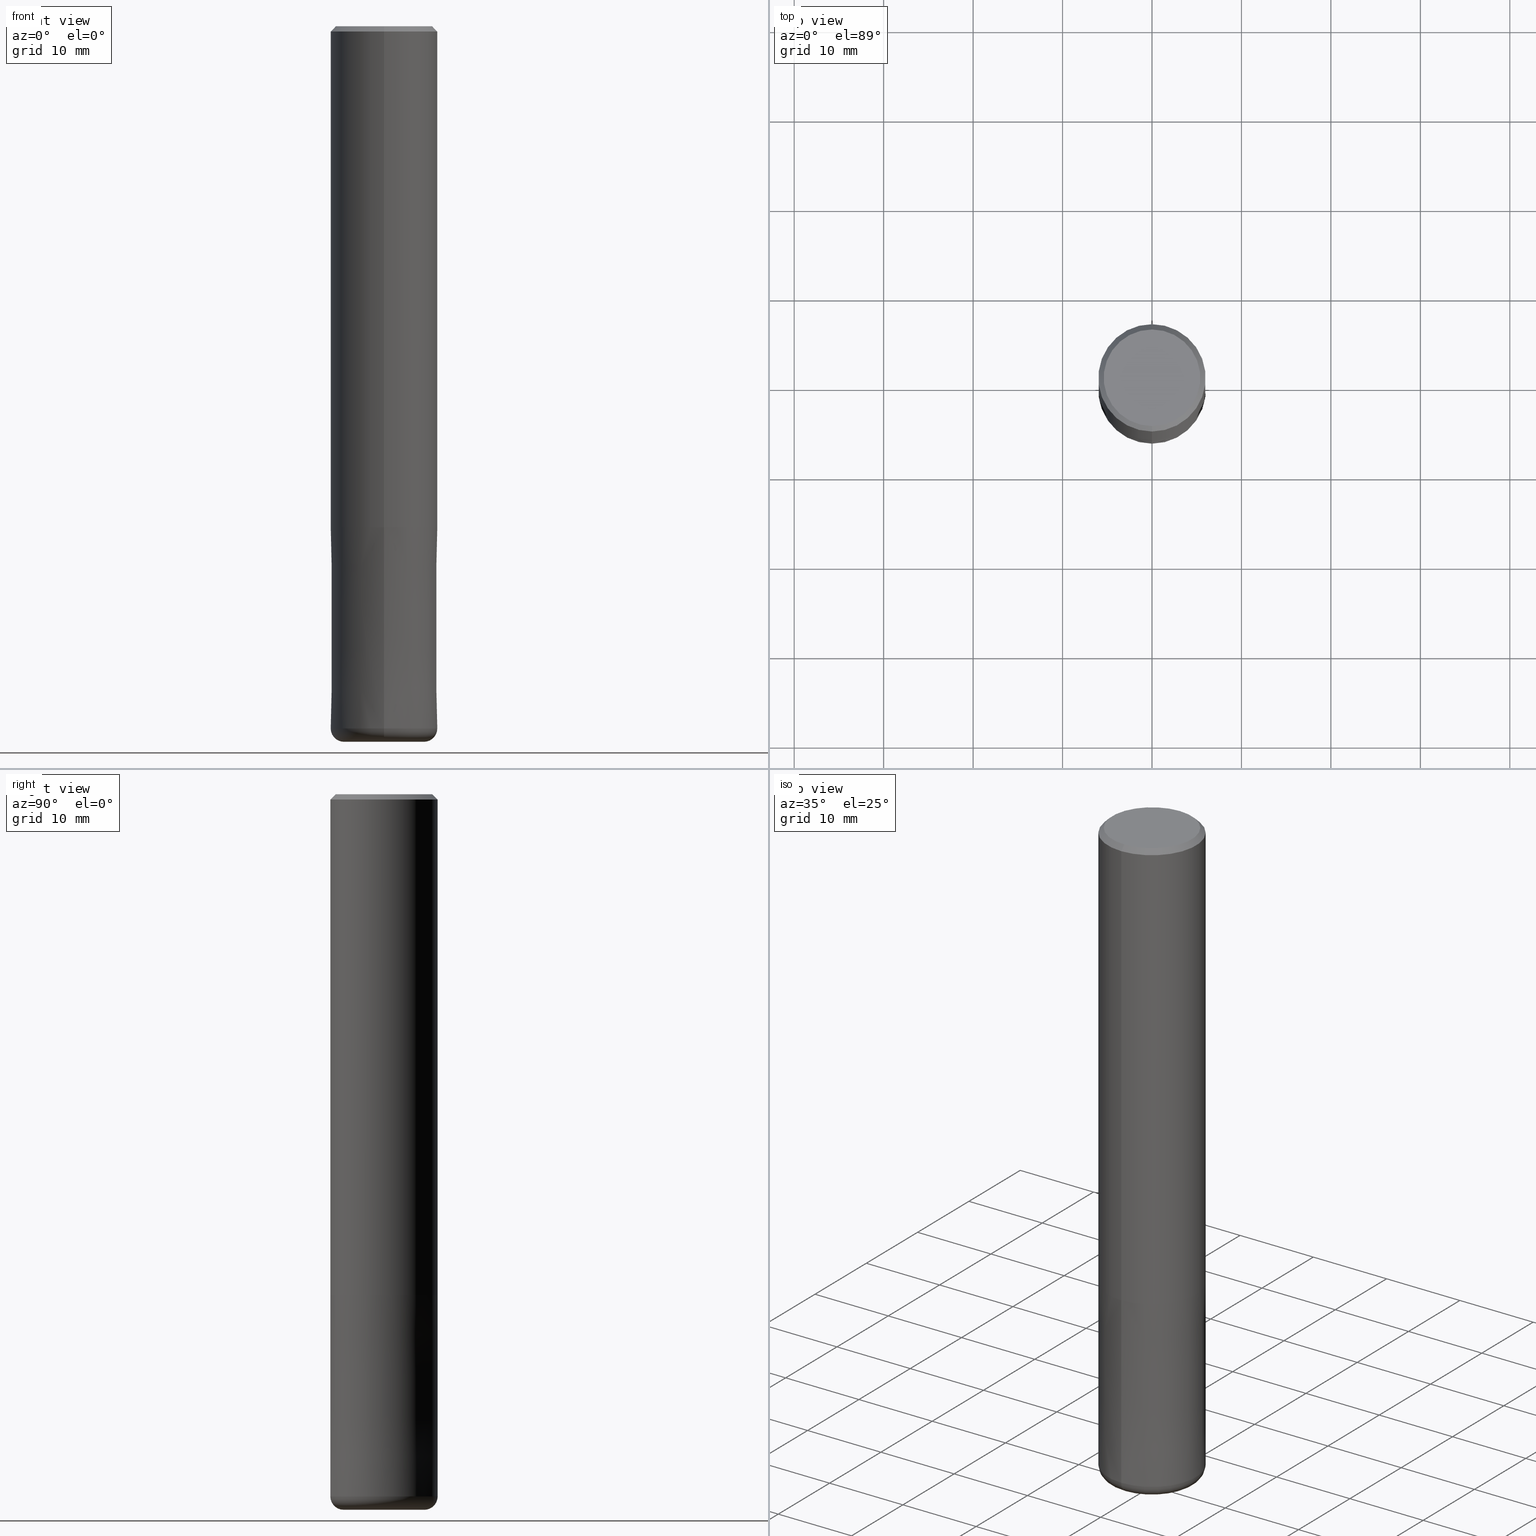
[diagram: canonical four-view strip — front | top / right | iso, engineering-drawing reading convention]
A machine part, canonical four-view strip (front | top / right | iso — engineering-drawing reading convention). The complete STEP part file that produces these views, byte-faithful:
ISO-10303-21;
HEADER;
FILE_DESCRIPTION(('no description'),'unknown implementation level');
FILE_NAME('CXRS5120-15-2400-Huellk.stp','  ',('CIMSOURCE GmbH'),('CADClick - KiM GmbH - www.kimweb.de'),'unknown preprocess','ACIS','unknown authorization');
FILE_SCHEMA(('automotive_design'));
ENDSEC;
DATA;
#1=MECHANICAL_DESIGN_GEOMETRIC_PRESENTATION_REPRESENTATION(' ',(#14,#15,#16,#17,#18,#19,#20,#21,#22,#23,#24,#25,#26,#27,#28,#29,#30,#31,#32,#33,#34,#35,#36,#37,#38,#39,#40,#41,#42,#43,#44,#45,#46,#47,#48,#49,#50,#51,#52,#53,#54,#55,#56,#57,#58,#59,#60,#61,#62,#63,#64,#65,#66,#67,#68,#69,#70,#71,#72,#73,#74,#75,#76,#77,#78,#79,#80,#81,#82,#83,#84),#10);
#2=PRODUCT_DEFINITION_CONTEXT('',#85,'design');
#3=APPLICATION_PROTOCOL_DEFINITION('INTERNATIONAL STANDARD','automotive_design',1994,#85);
#4=PRODUCT_CATEGORY_RELATIONSHIP('NONE','NONE',#86,#87);
#5=SHAPE_DEFINITION_REPRESENTATION(#88,#89);
#6=PRODUCT_DEFINITION_CONTEXT('',#90,'design');
#7=APPLICATION_PROTOCOL_DEFINITION('INTERNATIONAL STANDARD','automotive_design',1994,#90);
#8=PRODUCT_CATEGORY_RELATIONSHIP('NONE','NONE',#91,#92);
#9=SHAPE_DEFINITION_REPRESENTATION(#93,#94);
#10= (GEOMETRIC_REPRESENTATION_CONTEXT(3)GLOBAL_UNCERTAINTY_ASSIGNED_CONTEXT((#97))GLOBAL_UNIT_ASSIGNED_CONTEXT((#99,#100,#101))REPRESENTATION_CONTEXT('NONE','WORKSPACE'));
#14=STYLED_ITEM('',(#103),#104);
#15=STYLED_ITEM('',(#105),#106);
#16=STYLED_ITEM('',(#107),#108);
#17=STYLED_ITEM('',(#109),#110);
#18=STYLED_ITEM('',(#111),#112);
#19=STYLED_ITEM('',(#113),#114);
#20=STYLED_ITEM('',(#115),#116);
#21=STYLED_ITEM('',(#117),#118);
#22=STYLED_ITEM('',(#119),#120);
#23=STYLED_ITEM('',(#121),#122);
#24=STYLED_ITEM('',(#123),#124);
#25=STYLED_ITEM('',(#125),#126);
#26=STYLED_ITEM('',(#127),#128);
#27=STYLED_ITEM('',(#129),#130);
#28=STYLED_ITEM('',(#131),#132);
#29=STYLED_ITEM('',(#133),#134);
#30=STYLED_ITEM('',(#135),#136);
#31=STYLED_ITEM('',(#137),#138);
#32=STYLED_ITEM('',(#139),#140);
#33=STYLED_ITEM('',(#141),#142);
#34=STYLED_ITEM('',(#143),#144);
#35=STYLED_ITEM('',(#145),#146);
#36=STYLED_ITEM('',(#147),#148);
#37=STYLED_ITEM('',(#149),#150);
#38=STYLED_ITEM('',(#151),#152);
#39=STYLED_ITEM('',(#153),#154);
#40=STYLED_ITEM('',(#155),#156);
#41=STYLED_ITEM('',(#157),#158);
#42=STYLED_ITEM('',(#159),#160);
#43=STYLED_ITEM('',(#161),#162);
#44=STYLED_ITEM('',(#163),#164);
#45=STYLED_ITEM('',(#165),#166);
#46=STYLED_ITEM('',(#167),#168);
#47=STYLED_ITEM('',(#169),#170);
#48=STYLED_ITEM('',(#171),#172);
#49=STYLED_ITEM('',(#173),#174);
#50=STYLED_ITEM('',(#175),#176);
#51=STYLED_ITEM('',(#177),#178);
#52=STYLED_ITEM('',(#179),#180);
#53=STYLED_ITEM('',(#181),#182);
#54=STYLED_ITEM('',(#183),#184);
#55=STYLED_ITEM('',(#185),#186);
#56=STYLED_ITEM('',(#187),#188);
#57=STYLED_ITEM('',(#189),#190);
#58=STYLED_ITEM('',(#191),#192);
#59=STYLED_ITEM('',(#193),#194);
#60=STYLED_ITEM('',(#195),#196);
#61=STYLED_ITEM('',(#197),#198);
#62=STYLED_ITEM('',(#199),#200);
#63=STYLED_ITEM('',(#201),#202);
#64=STYLED_ITEM('',(#203),#204);
#65=STYLED_ITEM('',(#205),#206);
#66=STYLED_ITEM('',(#207),#208);
#67=STYLED_ITEM('',(#209),#210);
#68=STYLED_ITEM('',(#211),#212);
#69=STYLED_ITEM('',(#213),#214);
#70=STYLED_ITEM('',(#215),#216);
#71=STYLED_ITEM('',(#217),#218);
#72=STYLED_ITEM('',(#219),#220);
#73=STYLED_ITEM('',(#221),#222);
#74=STYLED_ITEM('',(#223),#224);
#75=STYLED_ITEM('',(#225),#226);
#76=STYLED_ITEM('',(#227),#228);
#77=STYLED_ITEM('',(#229),#230);
#78=STYLED_ITEM('',(#231),#232);
#79=STYLED_ITEM('',(#233),#234);
#80=STYLED_ITEM('',(#235),#236);
#81=STYLED_ITEM('',(#237),#238);
#82=STYLED_ITEM('',(#239),#240);
#83=STYLED_ITEM('',(#241),#242);
#84=STYLED_ITEM('',(#243),#244);
#85=APPLICATION_CONTEXT(' ');
#86=PRODUCT_CATEGORY('part','NONE');
#87=PRODUCT_RELATED_PRODUCT_CATEGORY('detail',' ',(#245));
#88=PRODUCT_DEFINITION_SHAPE('NONE','NONE',#246);
#89=ADVANCED_BREP_SHAPE_REPRESENTATION('1',(#214,#247),#10);
#90=APPLICATION_CONTEXT(' ');
#91=PRODUCT_CATEGORY('part','NONE');
#92=PRODUCT_RELATED_PRODUCT_CATEGORY('detail',' ',(#248));
#93=PRODUCT_DEFINITION_SHAPE('NONE','NONE',#249);
#94=ADVANCED_BREP_SHAPE_REPRESENTATION('2',(#134,#250),#10);
#97=UNCERTAINTY_MEASURE_WITH_UNIT(LENGTH_MEASURE(1.0E-006),#99,'','');
#99= (CONVERSION_BASED_UNIT('MILLIMETRE',#253)LENGTH_UNIT()NAMED_UNIT(#256));
#100= (NAMED_UNIT(#258)PLANE_ANGLE_UNIT()SI_UNIT($,.RADIAN.));
#101= (NAMED_UNIT(#258)SOLID_ANGLE_UNIT()SI_UNIT($,.STERADIAN.));
#103=PRESENTATION_STYLE_ASSIGNMENT((#264));
#104=EDGE_CURVE('',#184,#126,#265,.T.);
#105=PRESENTATION_STYLE_ASSIGNMENT((#266));
#106=EDGE_CURVE('',#126,#142,#267,.T.);
#107=PRESENTATION_STYLE_ASSIGNMENT((#268));
#108=EDGE_CURVE('',#142,#238,#269,.T.);
#109=PRESENTATION_STYLE_ASSIGNMENT((#270));
#110=EDGE_CURVE('',#244,#208,#271,.T.);
#111=PRESENTATION_STYLE_ASSIGNMENT((#272));
#112=EDGE_CURVE('',#132,#116,#273,.T.);
#113=PRESENTATION_STYLE_ASSIGNMENT((#274));
#114=ADVANCED_FACE('',(#275),#276,.T.);
#115=PRESENTATION_STYLE_ASSIGNMENT((#277));
#116=VERTEX_POINT('',#278);
#117=PRESENTATION_STYLE_ASSIGNMENT((#279));
#118=EDGE_CURVE('',#186,#192,#280,.T.);
#119=PRESENTATION_STYLE_ASSIGNMENT((#281));
#120=EDGE_CURVE('',#236,#140,#282,.T.);
#121=PRESENTATION_STYLE_ASSIGNMENT((#283));
#122=EDGE_CURVE('',#158,#192,#284,.T.);
#123=PRESENTATION_STYLE_ASSIGNMENT((#285));
#124=ADVANCED_FACE('',(#286),#287,.F.);
#125=PRESENTATION_STYLE_ASSIGNMENT((#288));
#126=VERTEX_POINT('',#289);
#127=PRESENTATION_STYLE_ASSIGNMENT((#290));
#128=EDGE_CURVE('',#188,#186,#291,.T.);
#129=PRESENTATION_STYLE_ASSIGNMENT((#292));
#130=EDGE_CURVE('',#126,#184,#293,.T.);
#131=PRESENTATION_STYLE_ASSIGNMENT((#294));
#132=VERTEX_POINT('',#295);
#133=PRESENTATION_STYLE_ASSIGNMENT((#296));
#134=MANIFOLD_SOLID_BREP('2',#297);
#135=PRESENTATION_STYLE_ASSIGNMENT((#298));
#136=EDGE_CURVE('',#182,#220,#299,.T.);
#137=PRESENTATION_STYLE_ASSIGNMENT((#300));
#138=VERTEX_POINT('',#301);
#139=PRESENTATION_STYLE_ASSIGNMENT((#302));
#140=VERTEX_POINT('',#303);
#141=PRESENTATION_STYLE_ASSIGNMENT((#304));
#142=VERTEX_POINT('',#305);
#143=PRESENTATION_STYLE_ASSIGNMENT((#306));
#144=EDGE_CURVE('',#220,#182,#307,.T.);
#145=PRESENTATION_STYLE_ASSIGNMENT((#308));
#146=ADVANCED_FACE('',(#309),#310,.T.);
#147=PRESENTATION_STYLE_ASSIGNMENT((#311));
#148=EDGE_CURVE('',#186,#170,#312,.T.);
#149=PRESENTATION_STYLE_ASSIGNMENT((#313));
#150=EDGE_CURVE('',#158,#188,#314,.T.);
#151=PRESENTATION_STYLE_ASSIGNMENT((#315));
#152=EDGE_CURVE('',#192,#158,#316,.T.);
#153=PRESENTATION_STYLE_ASSIGNMENT((#317));
#154=EDGE_CURVE('',#116,#132,#318,.T.);
#155=PRESENTATION_STYLE_ASSIGNMENT((#319));
#156=EDGE_CURVE('',#170,#172,#320,.T.);
#157=PRESENTATION_STYLE_ASSIGNMENT((#321));
#158=VERTEX_POINT('',#322);
#159=PRESENTATION_STYLE_ASSIGNMENT((#323));
#160=EDGE_CURVE('',#244,#138,#324,.T.);
#161=PRESENTATION_STYLE_ASSIGNMENT((#325));
#162=EDGE_CURVE('',#202,#208,#326,.T.);
#163=PRESENTATION_STYLE_ASSIGNMENT((#327));
#164=ADVANCED_FACE('',(#328),#329,.T.);
#165=PRESENTATION_STYLE_ASSIGNMENT((#330));
#166=ADVANCED_FACE('',(#331),#332,.T.);
#167=PRESENTATION_STYLE_ASSIGNMENT((#333));
#168=EDGE_CURVE('',#116,#236,#334,.T.);
#169=PRESENTATION_STYLE_ASSIGNMENT((#335));
#170=VERTEX_POINT('',#336);
#171=PRESENTATION_STYLE_ASSIGNMENT((#337));
#172=VERTEX_POINT('',#338);
#173=PRESENTATION_STYLE_ASSIGNMENT((#339));
#174=EDGE_CURVE('',#220,#244,#340,.T.);
#175=PRESENTATION_STYLE_ASSIGNMENT((#341));
#176=ADVANCED_FACE('',(#342),#343,.F.);
#177=PRESENTATION_STYLE_ASSIGNMENT((#344));
#178=EDGE_CURVE('',#172,#188,#345,.T.);
#179=PRESENTATION_STYLE_ASSIGNMENT((#346));
#180=ADVANCED_FACE('',(#347),#348,.T.);
#181=PRESENTATION_STYLE_ASSIGNMENT((#349));
#182=VERTEX_POINT('',#350);
#183=PRESENTATION_STYLE_ASSIGNMENT((#351));
#184=VERTEX_POINT('',#352);
#185=PRESENTATION_STYLE_ASSIGNMENT((#353));
#186=VERTEX_POINT('',#354);
#187=PRESENTATION_STYLE_ASSIGNMENT((#355));
#188=VERTEX_POINT('',#356);
#189=PRESENTATION_STYLE_ASSIGNMENT((#357));
#190=EDGE_CURVE('',#238,#184,#358,.T.);
#191=PRESENTATION_STYLE_ASSIGNMENT((#359));
#192=VERTEX_POINT('',#360);
#193=PRESENTATION_STYLE_ASSIGNMENT((#361));
#194=ADVANCED_FACE('',(#362,#363),#364,.T.);
#195=PRESENTATION_STYLE_ASSIGNMENT((#365));
#196=ADVANCED_FACE('',(#366),#367,.T.);
#197=PRESENTATION_STYLE_ASSIGNMENT((#368));
#198=EDGE_CURVE('',#208,#244,#369,.T.);
#199=PRESENTATION_STYLE_ASSIGNMENT((#370));
#200=ADVANCED_FACE('',(#371),#372,.T.);
#201=PRESENTATION_STYLE_ASSIGNMENT((#373));
#202=VERTEX_POINT('',#374);
#203=PRESENTATION_STYLE_ASSIGNMENT((#375));
#204=ADVANCED_FACE('',(#376),#377,.T.);
#205=PRESENTATION_STYLE_ASSIGNMENT((#378));
#206=EDGE_CURVE('',#208,#182,#379,.T.);
#207=PRESENTATION_STYLE_ASSIGNMENT((#380));
#208=VERTEX_POINT('',#381);
#209=PRESENTATION_STYLE_ASSIGNMENT((#382));
#210=EDGE_CURVE('',#202,#138,#383,.T.);
#211=PRESENTATION_STYLE_ASSIGNMENT((#384));
#212=ADVANCED_FACE('',(#385),#386,.T.);
#213=PRESENTATION_STYLE_ASSIGNMENT((#387));
#214=MANIFOLD_SOLID_BREP('1',#388);
#215=PRESENTATION_STYLE_ASSIGNMENT((#389));
#216=ADVANCED_FACE('',(#390,#391),#392,.T.);
#217=PRESENTATION_STYLE_ASSIGNMENT((#393));
#218=EDGE_CURVE('',#172,#170,#394,.T.);
#219=PRESENTATION_STYLE_ASSIGNMENT((#395));
#220=VERTEX_POINT('',#396);
#221=PRESENTATION_STYLE_ASSIGNMENT((#397));
#222=EDGE_CURVE('',#238,#142,#398,.T.);
#223=PRESENTATION_STYLE_ASSIGNMENT((#399));
#224=ADVANCED_FACE('',(#400),#401,.T.);
#225=PRESENTATION_STYLE_ASSIGNMENT((#402));
#226=ADVANCED_FACE('',(#403),#404,.T.);
#227=PRESENTATION_STYLE_ASSIGNMENT((#405));
#228=EDGE_CURVE('',#138,#202,#406,.T.);
#229=PRESENTATION_STYLE_ASSIGNMENT((#407));
#230=EDGE_CURVE('',#186,#188,#408,.T.);
#231=PRESENTATION_STYLE_ASSIGNMENT((#409));
#232=ADVANCED_FACE('',(#410,#411),#412,.T.);
#233=PRESENTATION_STYLE_ASSIGNMENT((#413));
#234=EDGE_CURVE('',#140,#236,#414,.T.);
#235=PRESENTATION_STYLE_ASSIGNMENT((#415));
#236=VERTEX_POINT('',#416);
#237=PRESENTATION_STYLE_ASSIGNMENT((#417));
#238=VERTEX_POINT('',#418);
#239=PRESENTATION_STYLE_ASSIGNMENT((#419));
#240=EDGE_CURVE('',#140,#132,#420,.T.);
#241=PRESENTATION_STYLE_ASSIGNMENT((#421));
#242=ADVANCED_FACE('',(#422),#423,.T.);
#243=PRESENTATION_STYLE_ASSIGNMENT((#424));
#244=VERTEX_POINT('',#425);
#245=PRODUCT('1','1','PART-1-DESC',(#426));
#246=PRODUCT_DEFINITION('NONE','NONE',#427,#2);
#247=AXIS2_PLACEMENT_3D('',#428,#429,#430);
#248=PRODUCT('2','2','PART-2-DESC',(#431));
#249=PRODUCT_DEFINITION('NONE','NONE',#432,#6);
#250=AXIS2_PLACEMENT_3D('',#433,#434,#435);
#253=LENGTH_MEASURE_WITH_UNIT(LENGTH_MEASURE(1.0),#436);
#256=DIMENSIONAL_EXPONENTS(1.0,0.0,0.0,0.0,0.0,0.0,0.0);
#258=DIMENSIONAL_EXPONENTS(0.0,0.0,0.0,0.0,0.0,0.0,0.0);
#264=CURVE_STYLE('',#437,POSITIVE_LENGTH_MEASURE(1.0E-006),#438);
#265=CIRCLE('',#439,2.7);
#266=CURVE_STYLE('',#440,POSITIVE_LENGTH_MEASURE(1.0E-006),#441);
#267=LINE('',#442,#443);
#268=CURVE_STYLE('',#444,POSITIVE_LENGTH_MEASURE(1.0E-006),#445);
#269=CIRCLE('',#446,2.7);
#270=CURVE_STYLE('',#447,POSITIVE_LENGTH_MEASURE(1.0E-006),#448);
#271=CIRCLE('',#449,6.0);
#272=CURVE_STYLE('',#450,POSITIVE_LENGTH_MEASURE(1.0E-006),#451);
#273=CIRCLE('',#452,2.7);
#274=SURFACE_STYLE_USAGE(.BOTH.,#453);
#275=FACE_OUTER_BOUND('',#454,.T.);
#276=CONICAL_SURFACE('',#455,5.99995,4.44444444440482E-006);
#277=POINT_STYLE(' ',#456,POSITIVE_LENGTH_MEASURE(1.0E-006),#457);
#278=CARTESIAN_POINT('',(0.0,2.7,-56.0));
#279=CURVE_STYLE('',#458,POSITIVE_LENGTH_MEASURE(1.0E-006),#459);
#280=LINE('',#460,#461);
#281=CURVE_STYLE('',#462,POSITIVE_LENGTH_MEASURE(1.0E-006),#463);
#282=CIRCLE('',#464,2.7);
#283=CURVE_STYLE('',#465,POSITIVE_LENGTH_MEASURE(1.0E-006),#466);
#284=CIRCLE('',#467,5.9999);
#285=SURFACE_STYLE_USAGE(.BOTH.,#468);
#286=FACE_OUTER_BOUND('',#469,.T.);
#287=CYLINDRICAL_SURFACE('',#470,2.7);
#288=POINT_STYLE(' ',#471,POSITIVE_LENGTH_MEASURE(1.0E-006),#472);
#289=CARTESIAN_POINT('',(0.0,2.7,-56.0));
#290=CURVE_STYLE('',#473,POSITIVE_LENGTH_MEASURE(1.0E-006),#474);
#291=CIRCLE('',#475,6.0);
#292=CURVE_STYLE('',#476,POSITIVE_LENGTH_MEASURE(1.0E-006),#477);
#293=CIRCLE('',#478,2.7);
#294=POINT_STYLE(' ',#479,POSITIVE_LENGTH_MEASURE(1.0E-006),#480);
#295=CARTESIAN_POINT('',(3.30643715532042E-016,-2.7,-56.0));
#296=SURFACE_STYLE_USAGE(.BOTH.,#481);
#297=CLOSED_SHELL('',(#124,#224,#114,#216,#242,#164,#232,#176));
#298=CURVE_STYLE('',#482,POSITIVE_LENGTH_MEASURE(1.0E-006),#483);
#299=CIRCLE('',#484,5.4);
#300=POINT_STYLE(' ',#485,POSITIVE_LENGTH_MEASURE(1.0E-006),#486);
#301=CARTESIAN_POINT('',(0.0,6.0,-56.0));
#302=POINT_STYLE(' ',#487,POSITIVE_LENGTH_MEASURE(1.0E-006),#488);
#303=CARTESIAN_POINT('',(3.30643715532042E-016,-2.7,-80.0));
#304=POINT_STYLE(' ',#489,POSITIVE_LENGTH_MEASURE(1.0E-006),#490);
#305=CARTESIAN_POINT('',(0.0,2.7,-79.76));
#306=CURVE_STYLE('',#491,POSITIVE_LENGTH_MEASURE(1.0E-006),#492);
#307=CIRCLE('',#493,5.4);
#308=SURFACE_STYLE_USAGE(.BOTH.,#494);
#309=FACE_OUTER_BOUND('',#495,.T.);
#310=CYLINDRICAL_SURFACE('',#496,2.7);
#311=CURVE_STYLE('',#497,POSITIVE_LENGTH_MEASURE(1.0E-006),#498);
#312=CIRCLE('',#499,1.5);
#313=CURVE_STYLE('',#500,POSITIVE_LENGTH_MEASURE(1.0E-006),#501);
#314=LINE('',#502,#503);
#315=CURVE_STYLE('',#504,POSITIVE_LENGTH_MEASURE(1.0E-006),#505);
#316=CIRCLE('',#506,5.9999);
#317=CURVE_STYLE('',#507,POSITIVE_LENGTH_MEASURE(1.0E-006),#508);
#318=CIRCLE('',#509,2.7);
#319=CURVE_STYLE('',#510,POSITIVE_LENGTH_MEASURE(1.0E-006),#511);
#320=CIRCLE('',#512,4.5);
#321=POINT_STYLE(' ',#513,POSITIVE_LENGTH_MEASURE(1.0E-006),#514);
#322=CARTESIAN_POINT('',(0.0,5.9999,-56.0));
#323=CURVE_STYLE('',#515,POSITIVE_LENGTH_MEASURE(1.0E-006),#516);
#324=LINE('',#517,#518);
#325=CURVE_STYLE('',#519,POSITIVE_LENGTH_MEASURE(1.0E-006),#520);
#326=LINE('',#521,#522);
#327=SURFACE_STYLE_USAGE(.BOTH.,#523);
#328=FACE_OUTER_BOUND('',#524,.T.);
#329=TOROIDAL_SURFACE('',#525,4.5,1.5);
#330=SURFACE_STYLE_USAGE(.BOTH.,#526);
#331=FACE_OUTER_BOUND('',#527,.T.);
#332=CYLINDRICAL_SURFACE('',#528,6.0);
#333=CURVE_STYLE('',#529,POSITIVE_LENGTH_MEASURE(1.0E-006),#530);
#334=LINE('',#531,#532);
#335=POINT_STYLE(' ',#533,POSITIVE_LENGTH_MEASURE(1.0E-006),#534);
#336=CARTESIAN_POINT('',(5.5107285922007E-016,-4.5,-80.0));
#337=POINT_STYLE(' ',#535,POSITIVE_LENGTH_MEASURE(1.0E-006),#536);
#338=CARTESIAN_POINT('',(0.0,4.5,-80.0));
#339=CURVE_STYLE('',#537,POSITIVE_LENGTH_MEASURE(1.0E-006),#538);
#340=LINE('',#539,#540);
#341=SURFACE_STYLE_USAGE(.BOTH.,#541);
#342=FACE_OUTER_BOUND('',#542,.T.);
#343=CYLINDRICAL_SURFACE('',#543,2.7);
#344=CURVE_STYLE('',#544,POSITIVE_LENGTH_MEASURE(1.0E-006),#545);
#345=CIRCLE('',#546,1.5);
#346=SURFACE_STYLE_USAGE(.BOTH.,#547);
#347=FACE_OUTER_BOUND('',#548,.T.);
#348=PLANE('',#549);
#349=POINT_STYLE(' ',#550,POSITIVE_LENGTH_MEASURE(1.0E-006),#551);
#350=CARTESIAN_POINT('',(6.61287431064084E-016,-5.4,0.0));
#351=POINT_STYLE(' ',#552,POSITIVE_LENGTH_MEASURE(1.0E-006),#553);
#352=CARTESIAN_POINT('',(3.30643715532042E-016,-2.7,-56.0));
#353=POINT_STYLE(' ',#554,POSITIVE_LENGTH_MEASURE(1.0E-006),#555);
#354=CARTESIAN_POINT('',(7.34763812293426E-016,-6.0,-78.5));
#355=POINT_STYLE(' ',#556,POSITIVE_LENGTH_MEASURE(1.0E-006),#557);
#356=CARTESIAN_POINT('',(0.0,6.0,-78.5));
#357=CURVE_STYLE('',#558,POSITIVE_LENGTH_MEASURE(1.0E-006),#559);
#358=LINE('',#560,#561);
#359=POINT_STYLE(' ',#562,POSITIVE_LENGTH_MEASURE(1.0E-006),#563);
#360=CARTESIAN_POINT('',(7.34751566229888E-016,-5.9999,-56.0));
#361=SURFACE_STYLE_USAGE(.BOTH.,#564);
#362=FACE_OUTER_BOUND('',#565,.T.);
#363=FACE_BOUND('',#566,.T.);
#364=PLANE('',#567);
#365=SURFACE_STYLE_USAGE(.BOTH.,#568);
#366=FACE_OUTER_BOUND('',#569,.T.);
#367=CONICAL_SURFACE('',#570,5.7,0.785398163397447);
#368=CURVE_STYLE('',#571,POSITIVE_LENGTH_MEASURE(1.0E-006),#572);
#369=CIRCLE('',#573,6.0);
#370=SURFACE_STYLE_USAGE(.BOTH.,#574);
#371=FACE_OUTER_BOUND('',#575,.T.);
#372=CYLINDRICAL_SURFACE('',#576,6.0);
#373=POINT_STYLE(' ',#577,POSITIVE_LENGTH_MEASURE(1.0E-006),#578);
#374=CARTESIAN_POINT('',(7.34763812293426E-016,-6.0,-56.0));
#375=SURFACE_STYLE_USAGE(.BOTH.,#579);
#376=FACE_OUTER_BOUND('',#580,.T.);
#377=CONICAL_SURFACE('',#581,5.7,0.785398163397447);
#378=CURVE_STYLE('',#582,POSITIVE_LENGTH_MEASURE(1.0E-006),#583);
#379=LINE('',#584,#585);
#380=POINT_STYLE(' ',#586,POSITIVE_LENGTH_MEASURE(1.0E-006),#587);
#381=CARTESIAN_POINT('',(7.34763812293426E-016,-6.0,-0.600000000000001));
#382=CURVE_STYLE('',#588,POSITIVE_LENGTH_MEASURE(1.0E-006),#589);
#383=CIRCLE('',#590,6.0);
#384=SURFACE_STYLE_USAGE(.BOTH.,#591);
#385=FACE_OUTER_BOUND('',#592,.T.);
#386=PLANE('',#593);
#387=SURFACE_STYLE_USAGE(.BOTH.,#594);
#388=CLOSED_SHELL('',(#146,#166,#196,#194,#212,#204,#200,#226,#180));
#389=SURFACE_STYLE_USAGE(.BOTH.,#595);
#390=FACE_OUTER_BOUND('',#596,.T.);
#391=FACE_BOUND('',#597,.T.);
#392=PLANE('',#598);
#393=CURVE_STYLE('',#599,POSITIVE_LENGTH_MEASURE(1.0E-006),#600);
#394=CIRCLE('',#601,4.5);
#395=POINT_STYLE(' ',#602,POSITIVE_LENGTH_MEASURE(1.0E-006),#603);
#396=CARTESIAN_POINT('',(0.0,5.4,0.0));
#397=CURVE_STYLE('',#604,POSITIVE_LENGTH_MEASURE(1.0E-006),#605);
#398=CIRCLE('',#606,2.7);
#399=SURFACE_STYLE_USAGE(.BOTH.,#607);
#400=FACE_OUTER_BOUND('',#608,.T.);
#401=TOROIDAL_SURFACE('',#609,4.5,1.5);
#402=SURFACE_STYLE_USAGE(.BOTH.,#610);
#403=FACE_OUTER_BOUND('',#611,.T.);
#404=CYLINDRICAL_SURFACE('',#612,2.7);
#405=CURVE_STYLE('',#613,POSITIVE_LENGTH_MEASURE(1.0E-006),#614);
#406=CIRCLE('',#615,6.0);
#407=CURVE_STYLE('',#616,POSITIVE_LENGTH_MEASURE(1.0E-006),#617);
#408=CIRCLE('',#618,6.0);
#409=SURFACE_STYLE_USAGE(.BOTH.,#619);
#410=FACE_BOUND('',#620,.T.);
#411=FACE_OUTER_BOUND('',#621,.T.);
#412=PLANE('',#622);
#413=CURVE_STYLE('',#623,POSITIVE_LENGTH_MEASURE(1.0E-006),#624);
#414=CIRCLE('',#625,2.7);
#415=POINT_STYLE(' ',#626,POSITIVE_LENGTH_MEASURE(1.0E-006),#627);
#416=CARTESIAN_POINT('',(0.0,2.7,-80.0));
#417=POINT_STYLE(' ',#628,POSITIVE_LENGTH_MEASURE(1.0E-006),#629);
#418=CARTESIAN_POINT('',(3.30643715532042E-016,-2.7,-79.76));
#419=CURVE_STYLE('',#630,POSITIVE_LENGTH_MEASURE(1.0E-006),#631);
#420=LINE('',#632,#633);
#421=SURFACE_STYLE_USAGE(.BOTH.,#634);
#422=FACE_OUTER_BOUND('',#635,.T.);
#423=CONICAL_SURFACE('',#636,5.99995,4.44444444440482E-006);
#424=POINT_STYLE(' ',#637,POSITIVE_LENGTH_MEASURE(1.0E-006),#638);
#425=CARTESIAN_POINT('',(0.0,6.0,-0.600000000000001));
#426=PRODUCT_CONTEXT('',#85,'mechanical');
#427=PRODUCT_DEFINITION_FORMATION_WITH_SPECIFIED_SOURCE(' ','NONE',#245,.NOT_KNOWN.);
#428=CARTESIAN_POINT('',(0.0,0.0,0.0));
#429=DIRECTION('',(0.0,0.0,1.0));
#430=DIRECTION('',(1.0,0.0,0.0));
#431=PRODUCT_CONTEXT('',#90,'mechanical');
#432=PRODUCT_DEFINITION_FORMATION_WITH_SPECIFIED_SOURCE(' ','NONE',#248,.NOT_KNOWN.);
#433=CARTESIAN_POINT('',(0.0,0.0,0.0));
#434=DIRECTION('',(0.0,0.0,1.0));
#435=DIRECTION('',(1.0,0.0,0.0));
#436= (NAMED_UNIT(#256)LENGTH_UNIT()SI_UNIT(.MILLI.,.METRE.));
#437=DRAUGHTING_PRE_DEFINED_CURVE_FONT('continuous');
#438=COLOUR_RGB('',0.498039215803146,0.498039215803146,0.498039215803146);
#439=AXIS2_PLACEMENT_3D('',#640,#641,#642);
#440=DRAUGHTING_PRE_DEFINED_CURVE_FONT('continuous');
#441=COLOUR_RGB('',0.498039215803146,0.498039215803146,0.498039215803146);
#442=CARTESIAN_POINT('',(-3.30643715532042E-016,2.7,-67.88));
#443=VECTOR('',#643,1.0);
#444=DRAUGHTING_PRE_DEFINED_CURVE_FONT('continuous');
#445=COLOUR_RGB('',0.498039215803146,0.498039215803146,0.498039215803146);
#446=AXIS2_PLACEMENT_3D('',#644,#645,#646);
#447=DRAUGHTING_PRE_DEFINED_CURVE_FONT('continuous');
#448=COLOUR_RGB('',0.498039215803146,0.498039215803146,0.498039215803146);
#449=AXIS2_PLACEMENT_3D('',#647,#648,#649);
#450=DRAUGHTING_PRE_DEFINED_CURVE_FONT('continuous');
#451=COLOUR_RGB('',0.800000011920929,0.800000011920929,0.800000011920929);
#452=AXIS2_PLACEMENT_3D('',#650,#651,#652);
#453=SURFACE_SIDE_STYLE('',(#653));
#454=EDGE_LOOP('',(#654,#655,#656,#657));
#455=AXIS2_PLACEMENT_3D('',#658,#659,#660);
#456=PRE_DEFINED_MARKER('');
#457=COLOUR_RGB('',0.800000011920929,0.800000011920929,0.800000011920929);
#458=DRAUGHTING_PRE_DEFINED_CURVE_FONT('continuous');
#459=COLOUR_RGB('',0.800000011920929,0.800000011920929,0.800000011920929);
#460=CARTESIAN_POINT('',(7.34757689261657E-016,-5.99995,-67.25));
#461=VECTOR('',#661,1.0);
#462=DRAUGHTING_PRE_DEFINED_CURVE_FONT('continuous');
#463=COLOUR_RGB('',0.800000011920929,0.800000011920929,0.800000011920929);
#464=AXIS2_PLACEMENT_3D('',#662,#663,#664);
#465=DRAUGHTING_PRE_DEFINED_CURVE_FONT('continuous');
#466=COLOUR_RGB('',0.800000011920929,0.800000011920929,0.800000011920929);
#467=AXIS2_PLACEMENT_3D('',#665,#666,#667);
#468=SURFACE_SIDE_STYLE('',(#668));
#469=EDGE_LOOP('',(#669,#670,#671,#672));
#470=AXIS2_PLACEMENT_3D('',#673,#674,#675);
#471=PRE_DEFINED_MARKER('');
#472=COLOUR_RGB('',0.498039215803146,0.498039215803146,0.498039215803146);
#473=DRAUGHTING_PRE_DEFINED_CURVE_FONT('continuous');
#474=COLOUR_RGB('',0.800000011920929,0.800000011920929,0.800000011920929);
#475=AXIS2_PLACEMENT_3D('',#676,#677,#678);
#476=DRAUGHTING_PRE_DEFINED_CURVE_FONT('continuous');
#477=COLOUR_RGB('',0.498039215803146,0.498039215803146,0.498039215803146);
#478=AXIS2_PLACEMENT_3D('',#679,#680,#681);
#479=PRE_DEFINED_MARKER('');
#480=COLOUR_RGB('',0.800000011920929,0.800000011920929,0.800000011920929);
#481=SURFACE_SIDE_STYLE('',(#682));
#482=DRAUGHTING_PRE_DEFINED_CURVE_FONT('continuous');
#483=COLOUR_RGB('',0.498039215803146,0.498039215803146,0.498039215803146);
#484=AXIS2_PLACEMENT_3D('',#683,#684,#685);
#485=PRE_DEFINED_MARKER('');
#486=COLOUR_RGB('',0.498039215803146,0.498039215803146,0.498039215803146);
#487=PRE_DEFINED_MARKER('');
#488=COLOUR_RGB('',0.800000011920929,0.800000011920929,0.800000011920929);
#489=PRE_DEFINED_MARKER('');
#490=COLOUR_RGB('',0.498039215803146,0.498039215803146,0.498039215803146);
#491=DRAUGHTING_PRE_DEFINED_CURVE_FONT('continuous');
#492=COLOUR_RGB('',0.498039215803146,0.498039215803146,0.498039215803146);
#493=AXIS2_PLACEMENT_3D('',#686,#687,#688);
#494=SURFACE_SIDE_STYLE('',(#689));
#495=EDGE_LOOP('',(#690,#691,#692,#693));
#496=AXIS2_PLACEMENT_3D('',#694,#695,#696);
#497=DRAUGHTING_PRE_DEFINED_CURVE_FONT('continuous');
#498=COLOUR_RGB('',0.800000011920929,0.800000011920929,0.800000011920929);
#499=AXIS2_PLACEMENT_3D('',#697,#698,#699);
#500=DRAUGHTING_PRE_DEFINED_CURVE_FONT('continuous');
#501=COLOUR_RGB('',0.800000011920929,0.800000011920929,0.800000011920929);
#502=CARTESIAN_POINT('',(-7.34757689261657E-016,5.99995,-67.25));
#503=VECTOR('',#700,1.0);
#504=DRAUGHTING_PRE_DEFINED_CURVE_FONT('continuous');
#505=COLOUR_RGB('',0.800000011920929,0.800000011920929,0.800000011920929);
#506=AXIS2_PLACEMENT_3D('',#701,#702,#703);
#507=DRAUGHTING_PRE_DEFINED_CURVE_FONT('continuous');
#508=COLOUR_RGB('',0.800000011920929,0.800000011920929,0.800000011920929);
#509=AXIS2_PLACEMENT_3D('',#704,#705,#706);
#510=DRAUGHTING_PRE_DEFINED_CURVE_FONT('continuous');
#511=COLOUR_RGB('',0.800000011920929,0.800000011920929,0.800000011920929);
#512=AXIS2_PLACEMENT_3D('',#707,#708,#709);
#513=PRE_DEFINED_MARKER('');
#514=COLOUR_RGB('',0.800000011920929,0.800000011920929,0.800000011920929);
#515=DRAUGHTING_PRE_DEFINED_CURVE_FONT('continuous');
#516=COLOUR_RGB('',0.498039215803146,0.498039215803146,0.498039215803146);
#517=CARTESIAN_POINT('',(-7.34763812293426E-016,6.0,-28.3));
#518=VECTOR('',#710,1.0);
#519=DRAUGHTING_PRE_DEFINED_CURVE_FONT('continuous');
#520=COLOUR_RGB('',0.498039215803146,0.498039215803146,0.498039215803146);
#521=CARTESIAN_POINT('',(7.34763812293426E-016,-6.0,-28.3));
#522=VECTOR('',#711,1.0);
#523=SURFACE_SIDE_STYLE('',(#712));
#524=EDGE_LOOP('',(#713,#714,#715,#716));
#525=AXIS2_PLACEMENT_3D('',#717,#718,#719);
#526=SURFACE_SIDE_STYLE('',(#720));
#527=EDGE_LOOP('',(#721,#722,#723,#724));
#528=AXIS2_PLACEMENT_3D('',#725,#726,#727);
#529=DRAUGHTING_PRE_DEFINED_CURVE_FONT('continuous');
#530=COLOUR_RGB('',0.800000011920929,0.800000011920929,0.800000011920929);
#531=CARTESIAN_POINT('',(-3.30643715532042E-016,2.7,-68.0));
#532=VECTOR('',#728,1.0);
#533=PRE_DEFINED_MARKER('');
#534=COLOUR_RGB('',0.800000011920929,0.800000011920929,0.800000011920929);
#535=PRE_DEFINED_MARKER('');
#536=COLOUR_RGB('',0.800000011920929,0.800000011920929,0.800000011920929);
#537=DRAUGHTING_PRE_DEFINED_CURVE_FONT('continuous');
#538=COLOUR_RGB('',0.498039215803146,0.498039215803146,0.498039215803146);
#539=CARTESIAN_POINT('',(-6.98025621678755E-016,5.7,-0.300000000000004));
#540=VECTOR('',#729,1.0);
#541=SURFACE_SIDE_STYLE('',(#730));
#542=EDGE_LOOP('',(#731,#732,#733,#734));
#543=AXIS2_PLACEMENT_3D('',#735,#736,#737);
#544=DRAUGHTING_PRE_DEFINED_CURVE_FONT('continuous');
#545=COLOUR_RGB('',0.800000011920929,0.800000011920929,0.800000011920929);
#546=AXIS2_PLACEMENT_3D('',#738,#739,#740);
#547=SURFACE_SIDE_STYLE('',(#741));
#548=EDGE_LOOP('',(#742,#743));
#549=AXIS2_PLACEMENT_3D('',#744,#745,#746);
#550=PRE_DEFINED_MARKER('');
#551=COLOUR_RGB('',0.498039215803146,0.498039215803146,0.498039215803146);
#552=PRE_DEFINED_MARKER('');
#553=COLOUR_RGB('',0.498039215803146,0.498039215803146,0.498039215803146);
#554=PRE_DEFINED_MARKER('');
#555=COLOUR_RGB('',0.800000011920929,0.800000011920929,0.800000011920929);
#556=PRE_DEFINED_MARKER('');
#557=COLOUR_RGB('',0.800000011920929,0.800000011920929,0.800000011920929);
#558=DRAUGHTING_PRE_DEFINED_CURVE_FONT('continuous');
#559=COLOUR_RGB('',0.498039215803146,0.498039215803146,0.498039215803146);
#560=CARTESIAN_POINT('',(3.30643715532042E-016,-2.7,-67.88));
#561=VECTOR('',#747,1.0);
#562=PRE_DEFINED_MARKER('');
#563=COLOUR_RGB('',0.800000011920929,0.800000011920929,0.800000011920929);
#564=SURFACE_SIDE_STYLE('',(#748));
#565=EDGE_LOOP('',(#749,#750));
#566=EDGE_LOOP('',(#751,#752));
#567=AXIS2_PLACEMENT_3D('',#753,#754,#755);
#568=SURFACE_SIDE_STYLE('',(#756));
#569=EDGE_LOOP('',(#757,#758,#759,#760));
#570=AXIS2_PLACEMENT_3D('',#761,#762,#763);
#571=DRAUGHTING_PRE_DEFINED_CURVE_FONT('continuous');
#572=COLOUR_RGB('',0.498039215803146,0.498039215803146,0.498039215803146);
#573=AXIS2_PLACEMENT_3D('',#764,#765,#766);
#574=SURFACE_SIDE_STYLE('',(#767));
#575=EDGE_LOOP('',(#768,#769,#770,#771));
#576=AXIS2_PLACEMENT_3D('',#772,#773,#774);
#577=PRE_DEFINED_MARKER('');
#578=COLOUR_RGB('',0.498039215803146,0.498039215803146,0.498039215803146);
#579=SURFACE_SIDE_STYLE('',(#775));
#580=EDGE_LOOP('',(#776,#777,#778,#779));
#581=AXIS2_PLACEMENT_3D('',#780,#781,#782);
#582=DRAUGHTING_PRE_DEFINED_CURVE_FONT('continuous');
#583=COLOUR_RGB('',0.498039215803146,0.498039215803146,0.498039215803146);
#584=CARTESIAN_POINT('',(6.98025621678755E-016,-5.7,-0.300000000000004));
#585=VECTOR('',#783,1.0);
#586=PRE_DEFINED_MARKER('');
#587=COLOUR_RGB('',0.498039215803146,0.498039215803146,0.498039215803146);
#588=DRAUGHTING_PRE_DEFINED_CURVE_FONT('continuous');
#589=COLOUR_RGB('',0.498039215803146,0.498039215803146,0.498039215803146);
#590=AXIS2_PLACEMENT_3D('',#784,#785,#786);
#591=SURFACE_SIDE_STYLE('',(#787));
#592=EDGE_LOOP('',(#788,#789));
#593=AXIS2_PLACEMENT_3D('',#790,#791,#792);
#594=SURFACE_SIDE_STYLE('',(#793));
#595=SURFACE_SIDE_STYLE('',(#794));
#596=EDGE_LOOP('',(#795,#796));
#597=EDGE_LOOP('',(#797,#798));
#598=AXIS2_PLACEMENT_3D('',#799,#800,#801);
#599=DRAUGHTING_PRE_DEFINED_CURVE_FONT('continuous');
#600=COLOUR_RGB('',0.800000011920929,0.800000011920929,0.800000011920929);
#601=AXIS2_PLACEMENT_3D('',#802,#803,#804);
#602=PRE_DEFINED_MARKER('');
#603=COLOUR_RGB('',0.498039215803146,0.498039215803146,0.498039215803146);
#604=DRAUGHTING_PRE_DEFINED_CURVE_FONT('continuous');
#605=COLOUR_RGB('',0.498039215803146,0.498039215803146,0.498039215803146);
#606=AXIS2_PLACEMENT_3D('',#805,#806,#807);
#607=SURFACE_SIDE_STYLE('',(#808));
#608=EDGE_LOOP('',(#809,#810,#811,#812));
#609=AXIS2_PLACEMENT_3D('',#813,#814,#815);
#610=SURFACE_SIDE_STYLE('',(#816));
#611=EDGE_LOOP('',(#817,#818,#819,#820));
#612=AXIS2_PLACEMENT_3D('',#821,#822,#823);
#613=DRAUGHTING_PRE_DEFINED_CURVE_FONT('continuous');
#614=COLOUR_RGB('',0.498039215803146,0.498039215803146,0.498039215803146);
#615=AXIS2_PLACEMENT_3D('',#824,#825,#826);
#616=DRAUGHTING_PRE_DEFINED_CURVE_FONT('continuous');
#617=COLOUR_RGB('',0.800000011920929,0.800000011920929,0.800000011920929);
#618=AXIS2_PLACEMENT_3D('',#827,#828,#829);
#619=SURFACE_SIDE_STYLE('',(#830));
#620=EDGE_LOOP('',(#831,#832));
#621=EDGE_LOOP('',(#833,#834));
#622=AXIS2_PLACEMENT_3D('',#835,#836,#837);
#623=DRAUGHTING_PRE_DEFINED_CURVE_FONT('continuous');
#624=COLOUR_RGB('',0.800000011920929,0.800000011920929,0.800000011920929);
#625=AXIS2_PLACEMENT_3D('',#838,#839,#840);
#626=PRE_DEFINED_MARKER('');
#627=COLOUR_RGB('',0.800000011920929,0.800000011920929,0.800000011920929);
#628=PRE_DEFINED_MARKER('');
#629=COLOUR_RGB('',0.498039215803146,0.498039215803146,0.498039215803146);
#630=DRAUGHTING_PRE_DEFINED_CURVE_FONT('continuous');
#631=COLOUR_RGB('',0.800000011920929,0.800000011920929,0.800000011920929);
#632=CARTESIAN_POINT('',(3.30643715532042E-016,-2.7,-68.0));
#633=VECTOR('',#841,1.0);
#634=SURFACE_SIDE_STYLE('',(#842));
#635=EDGE_LOOP('',(#843,#844,#845,#846));
#636=AXIS2_PLACEMENT_3D('',#847,#848,#849);
#637=PRE_DEFINED_MARKER('');
#638=COLOUR_RGB('',0.498039215803146,0.498039215803146,0.498039215803146);
#640=CARTESIAN_POINT('',(0.0,0.0,-56.0));
#641=DIRECTION('',(0.0,0.0,-1.0));
#642=DIRECTION('',(0.0,1.0,0.0));
#643=DIRECTION('',(0.0,0.0,-1.0));
#644=CARTESIAN_POINT('',(0.0,0.0,-79.76));
#645=DIRECTION('',(0.0,0.0,-1.0));
#646=DIRECTION('',(0.0,1.0,0.0));
#647=CARTESIAN_POINT('',(0.0,0.0,-0.600000000000001));
#648=DIRECTION('',(0.0,0.0,-1.0));
#649=DIRECTION('',(0.0,1.0,0.0));
#650=CARTESIAN_POINT('',(0.0,0.0,-56.0));
#651=DIRECTION('',(0.0,0.0,-1.0));
#652=DIRECTION('',(0.0,1.0,0.0));
#653=SURFACE_STYLE_FILL_AREA(#850);
#654=ORIENTED_EDGE('',*,*,#150,.F.);
#655=ORIENTED_EDGE('',*,*,#122,.T.);
#656=ORIENTED_EDGE('',*,*,#118,.F.);
#657=ORIENTED_EDGE('',*,*,#128,.F.);
#658=CARTESIAN_POINT('',(0.0,0.0,-67.25));
#659=DIRECTION('',(0.0,-0.0,-1.0));
#660=DIRECTION('',(0.0,1.0,0.0));
#661=DIRECTION('',(-5.44269490581079E-022,4.44444444439019E-006,0.999999999990124));
#662=CARTESIAN_POINT('',(0.0,0.0,-80.0));
#663=DIRECTION('',(0.0,0.0,-1.0));
#664=DIRECTION('',(0.0,1.0,0.0));
#665=CARTESIAN_POINT('',(0.0,0.0,-56.0));
#666=DIRECTION('',(0.0,0.0,-1.0));
#667=DIRECTION('',(0.0,1.0,0.0));
#668=SURFACE_STYLE_FILL_AREA(#851);
#669=ORIENTED_EDGE('',*,*,#168,.F.);
#670=ORIENTED_EDGE('',*,*,#112,.F.);
#671=ORIENTED_EDGE('',*,*,#240,.F.);
#672=ORIENTED_EDGE('',*,*,#234,.T.);
#673=CARTESIAN_POINT('',(0.0,0.0,-68.0));
#674=DIRECTION('',(-0.0,-0.0,1.0));
#675=DIRECTION('',(0.0,1.0,0.0));
#676=CARTESIAN_POINT('',(0.0,0.0,-78.5));
#677=DIRECTION('',(0.0,0.0,-1.0));
#678=DIRECTION('',(0.0,1.0,0.0));
#679=CARTESIAN_POINT('',(0.0,0.0,-56.0));
#680=DIRECTION('',(0.0,0.0,-1.0));
#681=DIRECTION('',(0.0,1.0,0.0));
#682=SURFACE_STYLE_FILL_AREA(#852);
#683=CARTESIAN_POINT('',(0.0,0.0,0.0));
#684=DIRECTION('',(0.0,0.0,-1.0));
#685=DIRECTION('',(0.0,1.0,0.0));
#686=CARTESIAN_POINT('',(0.0,0.0,0.0));
#687=DIRECTION('',(0.0,0.0,-1.0));
#688=DIRECTION('',(0.0,1.0,0.0));
#689=SURFACE_STYLE_FILL_AREA(#853);
#690=ORIENTED_EDGE('',*,*,#106,.F.);
#691=ORIENTED_EDGE('',*,*,#130,.T.);
#692=ORIENTED_EDGE('',*,*,#190,.F.);
#693=ORIENTED_EDGE('',*,*,#108,.F.);
#694=CARTESIAN_POINT('',(0.0,0.0,-67.88));
#695=DIRECTION('',(-0.0,-0.0,1.0));
#696=DIRECTION('',(0.0,1.0,0.0));
#697=CARTESIAN_POINT('',(5.5107285922007E-016,-4.5,-78.5));
#698=DIRECTION('',(1.0,1.22460635382238E-016,0.0));
#699=DIRECTION('',(1.22460635382238E-016,-1.0,-0.0));
#700=DIRECTION('',(-5.44269490581079E-022,4.44444444439019E-006,-0.999999999990124));
#701=CARTESIAN_POINT('',(0.0,0.0,-56.0));
#702=DIRECTION('',(0.0,0.0,-1.0));
#703=DIRECTION('',(0.0,1.0,0.0));
#704=CARTESIAN_POINT('',(0.0,0.0,-56.0));
#705=DIRECTION('',(0.0,0.0,-1.0));
#706=DIRECTION('',(0.0,1.0,0.0));
#707=CARTESIAN_POINT('',(0.0,0.0,-80.0));
#708=DIRECTION('',(0.0,0.0,-1.0));
#709=DIRECTION('',(0.0,1.0,0.0));
#710=DIRECTION('',(0.0,0.0,-1.0));
#711=DIRECTION('',(-0.0,-0.0,1.0));
#712=SURFACE_STYLE_FILL_AREA(#854);
#713=ORIENTED_EDGE('',*,*,#148,.T.);
#714=ORIENTED_EDGE('',*,*,#218,.F.);
#715=ORIENTED_EDGE('',*,*,#178,.T.);
#716=ORIENTED_EDGE('',*,*,#128,.T.);
#717=CARTESIAN_POINT('',(0.0,0.0,-78.5));
#718=DIRECTION('',(0.0,0.0,-1.0));
#719=DIRECTION('',(0.0,-1.0,0.0));
#720=SURFACE_STYLE_FILL_AREA(#855);
#721=ORIENTED_EDGE('',*,*,#160,.F.);
#722=ORIENTED_EDGE('',*,*,#110,.T.);
#723=ORIENTED_EDGE('',*,*,#162,.F.);
#724=ORIENTED_EDGE('',*,*,#228,.F.);
#725=CARTESIAN_POINT('',(0.0,0.0,-28.3));
#726=DIRECTION('',(-0.0,-0.0,1.0));
#727=DIRECTION('',(0.0,1.0,0.0));
#728=DIRECTION('',(0.0,-0.0,-1.0));
#729=DIRECTION('',(-8.65927457071934E-017,0.707106781186546,-0.707106781186549));
#730=SURFACE_STYLE_FILL_AREA(#856);
#731=ORIENTED_EDGE('',*,*,#168,.T.);
#732=ORIENTED_EDGE('',*,*,#120,.T.);
#733=ORIENTED_EDGE('',*,*,#240,.T.);
#734=ORIENTED_EDGE('',*,*,#154,.F.);
#735=CARTESIAN_POINT('',(0.0,0.0,-68.0));
#736=DIRECTION('',(-0.0,-0.0,1.0));
#737=DIRECTION('',(0.0,1.0,0.0));
#738=CARTESIAN_POINT('',(-5.5107285922007E-016,4.5,-78.5));
#739=DIRECTION('',(1.0,1.22460635382238E-016,0.0));
#740=DIRECTION('',(-1.22460635382238E-016,1.0,0.0));
#741=SURFACE_STYLE_FILL_AREA(#857);
#742=ORIENTED_EDGE('',*,*,#108,.T.);
#743=ORIENTED_EDGE('',*,*,#222,.T.);
#744=CARTESIAN_POINT('',(0.0,1.35,-79.76));
#745=DIRECTION('',(0.0,0.0,-1.0));
#746=DIRECTION('',(0.0,1.0,0.0));
#747=DIRECTION('',(-0.0,-0.0,1.0));
#748=SURFACE_STYLE_FILL_AREA(#858);
#749=ORIENTED_EDGE('',*,*,#228,.T.);
#750=ORIENTED_EDGE('',*,*,#210,.T.);
#751=ORIENTED_EDGE('',*,*,#130,.F.);
#752=ORIENTED_EDGE('',*,*,#104,.F.);
#753=CARTESIAN_POINT('',(0.0,3.0,-56.0));
#754=DIRECTION('',(0.0,0.0,-1.0));
#755=DIRECTION('',(0.0,1.0,0.0));
#756=SURFACE_STYLE_FILL_AREA(#859);
#757=ORIENTED_EDGE('',*,*,#174,.F.);
#758=ORIENTED_EDGE('',*,*,#144,.T.);
#759=ORIENTED_EDGE('',*,*,#206,.F.);
#760=ORIENTED_EDGE('',*,*,#110,.F.);
#761=CARTESIAN_POINT('',(0.0,0.0,-0.300000000000004));
#762=DIRECTION('',(0.0,-0.0,-1.0));
#763=DIRECTION('',(0.0,1.0,0.0));
#764=CARTESIAN_POINT('',(0.0,0.0,-0.600000000000001));
#765=DIRECTION('',(0.0,0.0,-1.0));
#766=DIRECTION('',(0.0,1.0,0.0));
#767=SURFACE_STYLE_FILL_AREA(#860);
#768=ORIENTED_EDGE('',*,*,#160,.T.);
#769=ORIENTED_EDGE('',*,*,#210,.F.);
#770=ORIENTED_EDGE('',*,*,#162,.T.);
#771=ORIENTED_EDGE('',*,*,#198,.T.);
#772=CARTESIAN_POINT('',(0.0,0.0,-28.3));
#773=DIRECTION('',(-0.0,-0.0,1.0));
#774=DIRECTION('',(0.0,1.0,0.0));
#775=SURFACE_STYLE_FILL_AREA(#861);
#776=ORIENTED_EDGE('',*,*,#174,.T.);
#777=ORIENTED_EDGE('',*,*,#198,.F.);
#778=ORIENTED_EDGE('',*,*,#206,.T.);
#779=ORIENTED_EDGE('',*,*,#136,.T.);
#780=CARTESIAN_POINT('',(0.0,0.0,-0.300000000000004));
#781=DIRECTION('',(0.0,-0.0,-1.0));
#782=DIRECTION('',(0.0,1.0,0.0));
#783=DIRECTION('',(-8.65927457071934E-017,0.707106781186546,0.707106781186549));
#784=CARTESIAN_POINT('',(0.0,0.0,-56.0));
#785=DIRECTION('',(0.0,0.0,-1.0));
#786=DIRECTION('',(0.0,1.0,0.0));
#787=SURFACE_STYLE_FILL_AREA(#862);
#788=ORIENTED_EDGE('',*,*,#144,.F.);
#789=ORIENTED_EDGE('',*,*,#136,.F.);
#790=CARTESIAN_POINT('',(0.0,2.7,0.0));
#791=DIRECTION('',(-0.0,0.0,1.0));
#792=DIRECTION('',(0.0,-1.0,0.0));
#793=SURFACE_STYLE_FILL_AREA(#863);
#794=SURFACE_STYLE_FILL_AREA(#864);
#795=ORIENTED_EDGE('',*,*,#122,.F.);
#796=ORIENTED_EDGE('',*,*,#152,.F.);
#797=ORIENTED_EDGE('',*,*,#154,.T.);
#798=ORIENTED_EDGE('',*,*,#112,.T.);
#799=CARTESIAN_POINT('',(0.0,4.34995,-56.0));
#800=DIRECTION('',(-0.0,0.0,1.0));
#801=DIRECTION('',(0.0,-1.0,0.0));
#802=CARTESIAN_POINT('',(0.0,0.0,-80.0));
#803=DIRECTION('',(0.0,0.0,-1.0));
#804=DIRECTION('',(0.0,1.0,0.0));
#805=CARTESIAN_POINT('',(0.0,0.0,-79.76));
#806=DIRECTION('',(0.0,0.0,-1.0));
#807=DIRECTION('',(0.0,1.0,0.0));
#808=SURFACE_STYLE_FILL_AREA(#865);
#809=ORIENTED_EDGE('',*,*,#148,.F.);
#810=ORIENTED_EDGE('',*,*,#230,.T.);
#811=ORIENTED_EDGE('',*,*,#178,.F.);
#812=ORIENTED_EDGE('',*,*,#156,.F.);
#813=CARTESIAN_POINT('',(0.0,0.0,-78.5));
#814=DIRECTION('',(0.0,0.0,-1.0));
#815=DIRECTION('',(0.0,-1.0,0.0));
#816=SURFACE_STYLE_FILL_AREA(#866);
#817=ORIENTED_EDGE('',*,*,#106,.T.);
#818=ORIENTED_EDGE('',*,*,#222,.F.);
#819=ORIENTED_EDGE('',*,*,#190,.T.);
#820=ORIENTED_EDGE('',*,*,#104,.T.);
#821=CARTESIAN_POINT('',(0.0,0.0,-67.88));
#822=DIRECTION('',(-0.0,-0.0,1.0));
#823=DIRECTION('',(0.0,1.0,0.0));
#824=CARTESIAN_POINT('',(0.0,0.0,-56.0));
#825=DIRECTION('',(0.0,0.0,-1.0));
#826=DIRECTION('',(0.0,1.0,0.0));
#827=CARTESIAN_POINT('',(0.0,0.0,-78.5));
#828=DIRECTION('',(0.0,0.0,-1.0));
#829=DIRECTION('',(0.0,1.0,0.0));
#830=SURFACE_STYLE_FILL_AREA(#867);
#831=ORIENTED_EDGE('',*,*,#120,.F.);
#832=ORIENTED_EDGE('',*,*,#234,.F.);
#833=ORIENTED_EDGE('',*,*,#218,.T.);
#834=ORIENTED_EDGE('',*,*,#156,.T.);
#835=CARTESIAN_POINT('',(0.0,3.6,-80.0));
#836=DIRECTION('',(0.0,0.0,-1.0));
#837=DIRECTION('',(0.0,1.0,0.0));
#838=CARTESIAN_POINT('',(0.0,0.0,-80.0));
#839=DIRECTION('',(0.0,0.0,-1.0));
#840=DIRECTION('',(0.0,1.0,0.0));
#841=DIRECTION('',(0.0,-0.0,1.0));
#842=SURFACE_STYLE_FILL_AREA(#868);
#843=ORIENTED_EDGE('',*,*,#150,.T.);
#844=ORIENTED_EDGE('',*,*,#230,.F.);
#845=ORIENTED_EDGE('',*,*,#118,.T.);
#846=ORIENTED_EDGE('',*,*,#152,.T.);
#847=CARTESIAN_POINT('',(0.0,0.0,-67.25));
#848=DIRECTION('',(0.0,-0.0,-1.0));
#849=DIRECTION('',(0.0,1.0,0.0));
#850=FILL_AREA_STYLE('',(#869));
#851=FILL_AREA_STYLE('',(#870));
#852=FILL_AREA_STYLE('',(#871));
#853=FILL_AREA_STYLE('',(#872));
#854=FILL_AREA_STYLE('',(#873));
#855=FILL_AREA_STYLE('',(#874));
#856=FILL_AREA_STYLE('',(#875));
#857=FILL_AREA_STYLE('',(#876));
#858=FILL_AREA_STYLE('',(#877));
#859=FILL_AREA_STYLE('',(#878));
#860=FILL_AREA_STYLE('',(#879));
#861=FILL_AREA_STYLE('',(#880));
#862=FILL_AREA_STYLE('',(#881));
#863=FILL_AREA_STYLE('',(#882));
#864=FILL_AREA_STYLE('',(#883));
#865=FILL_AREA_STYLE('',(#884));
#866=FILL_AREA_STYLE('',(#885));
#867=FILL_AREA_STYLE('',(#886));
#868=FILL_AREA_STYLE('',(#887));
#869=FILL_AREA_STYLE_COLOUR('',#888);
#870=FILL_AREA_STYLE_COLOUR('',#889);
#871=FILL_AREA_STYLE_COLOUR('',#890);
#872=FILL_AREA_STYLE_COLOUR('',#891);
#873=FILL_AREA_STYLE_COLOUR('',#892);
#874=FILL_AREA_STYLE_COLOUR('',#893);
#875=FILL_AREA_STYLE_COLOUR('',#894);
#876=FILL_AREA_STYLE_COLOUR('',#895);
#877=FILL_AREA_STYLE_COLOUR('',#896);
#878=FILL_AREA_STYLE_COLOUR('',#897);
#879=FILL_AREA_STYLE_COLOUR('',#898);
#880=FILL_AREA_STYLE_COLOUR('',#899);
#881=FILL_AREA_STYLE_COLOUR('',#900);
#882=FILL_AREA_STYLE_COLOUR('',#901);
#883=FILL_AREA_STYLE_COLOUR('',#902);
#884=FILL_AREA_STYLE_COLOUR('',#903);
#885=FILL_AREA_STYLE_COLOUR('',#904);
#886=FILL_AREA_STYLE_COLOUR('',#905);
#887=FILL_AREA_STYLE_COLOUR('',#906);
#888=COLOUR_RGB('',0.800000011920929,0.800000011920929,0.800000011920929);
#889=COLOUR_RGB('',0.800000011920929,0.800000011920929,0.800000011920929);
#890=COLOUR_RGB('',0.800000011920929,0.800000011920929,0.800000011920929);
#891=COLOUR_RGB('',0.498039215803146,0.498039215803146,0.498039215803146);
#892=COLOUR_RGB('',0.800000011920929,0.800000011920929,0.800000011920929);
#893=COLOUR_RGB('',0.498039215803146,0.498039215803146,0.498039215803146);
#894=COLOUR_RGB('',0.800000011920929,0.800000011920929,0.800000011920929);
#895=COLOUR_RGB('',0.498039215803146,0.498039215803146,0.498039215803146);
#896=COLOUR_RGB('',0.498039215803146,0.498039215803146,0.498039215803146);
#897=COLOUR_RGB('',0.498039215803146,0.498039215803146,0.498039215803146);
#898=COLOUR_RGB('',0.498039215803146,0.498039215803146,0.498039215803146);
#899=COLOUR_RGB('',0.498039215803146,0.498039215803146,0.498039215803146);
#900=COLOUR_RGB('',0.498039215803146,0.498039215803146,0.498039215803146);
#901=COLOUR_RGB('',0.498039215803146,0.498039215803146,0.498039215803146);
#902=COLOUR_RGB('',0.800000011920929,0.800000011920929,0.800000011920929);
#903=COLOUR_RGB('',0.800000011920929,0.800000011920929,0.800000011920929);
#904=COLOUR_RGB('',0.498039215803146,0.498039215803146,0.498039215803146);
#905=COLOUR_RGB('',0.800000011920929,0.800000011920929,0.800000011920929);
#906=COLOUR_RGB('',0.800000011920929,0.800000011920929,0.800000011920929);
#907=AXIS2_PLACEMENT_3D('PCS',#908,#909,#910);
#908=CARTESIAN_POINT('',(0.0,0.0,0.0));
#909=DIRECTION('',(0.0,0.0,1.0));
#910=DIRECTION('',(1.0,0.0,0.0));
#911=AXIS2_PLACEMENT_3D('CIP',#912,#913,#914);
#912=CARTESIAN_POINT('',(0.0,0.0,-80.0));
#913=DIRECTION('',(0.0,0.0,1.0));
#914=DIRECTION('',(1.0,0.0,0.0));
#915=AXIS2_PLACEMENT_3D('CRP',#916,#917,#918);
#916=CARTESIAN_POINT('',(-6.0,0.0,-80.0));
#917=DIRECTION('',(0.0,0.0,1.0));
#918=DIRECTION('',(1.0,0.0,0.0));
#919=AXIS2_PLACEMENT_3D('MCS',#920,#921,#922);
#920=CARTESIAN_POINT('',(0.0,0.0,-56.0));
#921=DIRECTION('',(0.0,0.0,1.0));
#922=DIRECTION('',(1.0,0.0,0.0));
#923=CONSTRUCTIVE_GEOMETRY_REPRESENTATION_RELATIONSHIP('coordinate systems',$,#89,#924);
#924=CONSTRUCTIVE_GEOMETRY_REPRESENTATION('coordinate systems',(#907,#911,#915,#919),#10);
ENDSEC;
END-ISO-10303-21;
